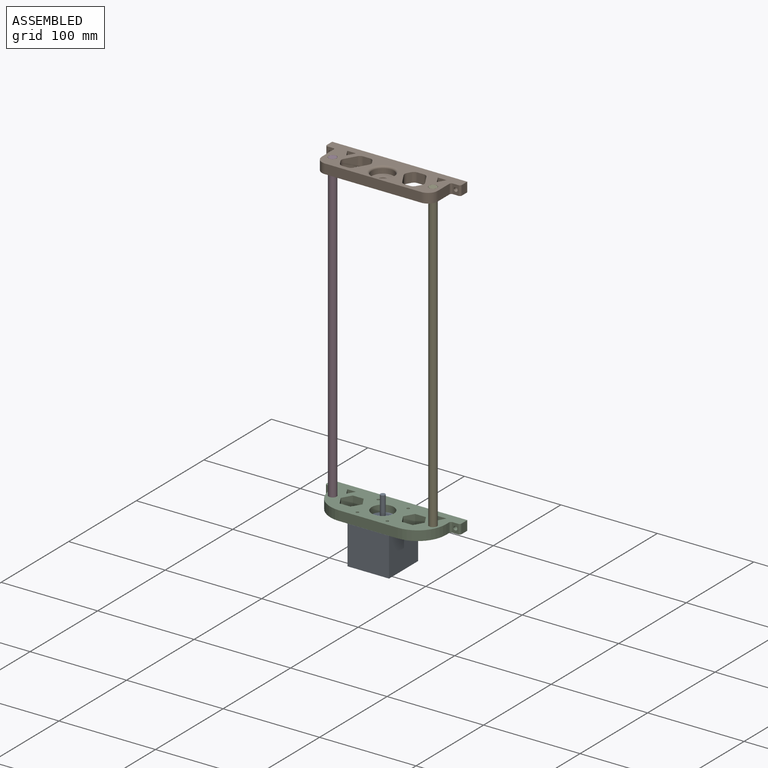
[diagram: assembled view]
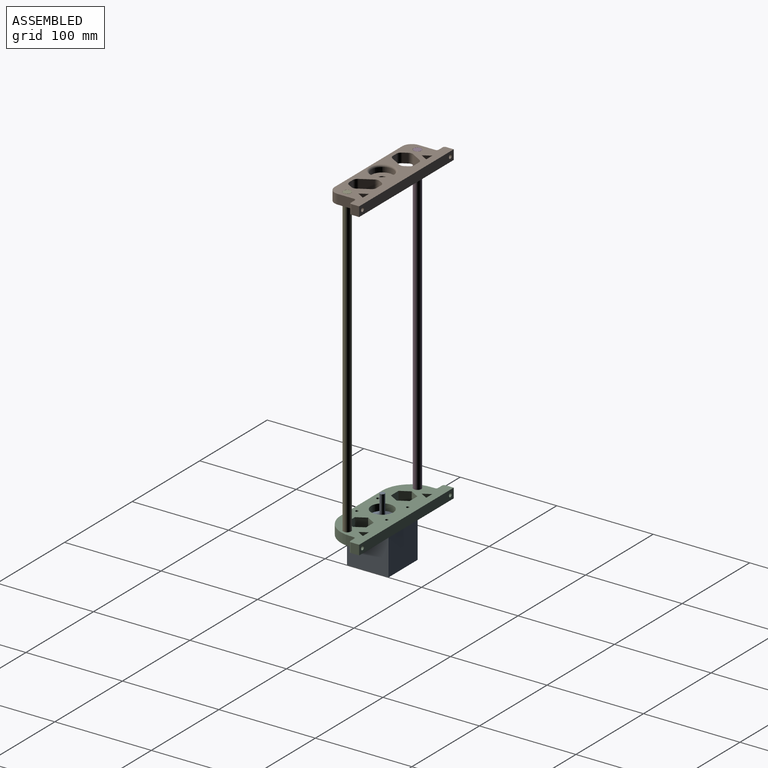
[diagram: assembled view, second angle]
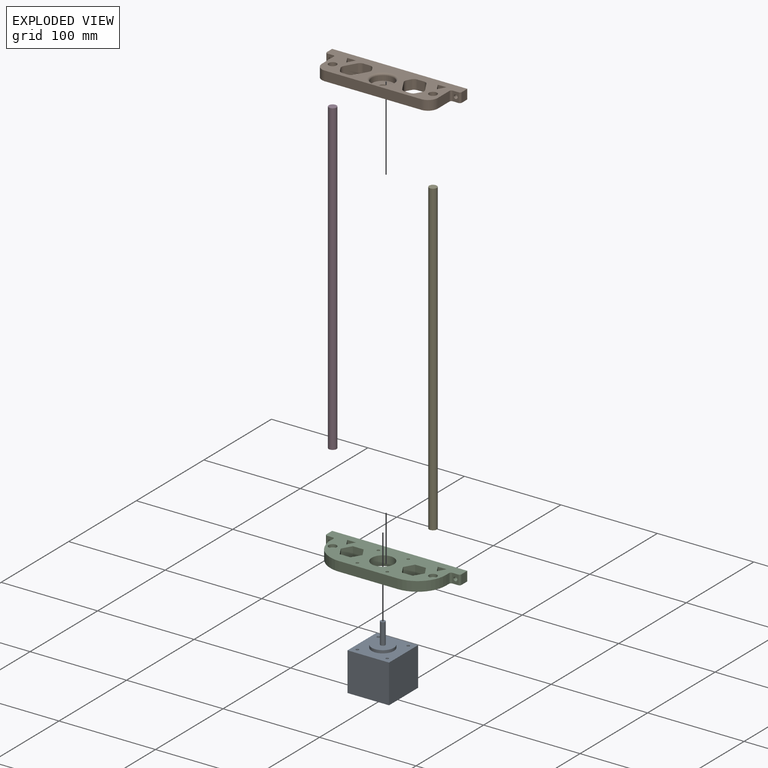
[diagram: exploded view]
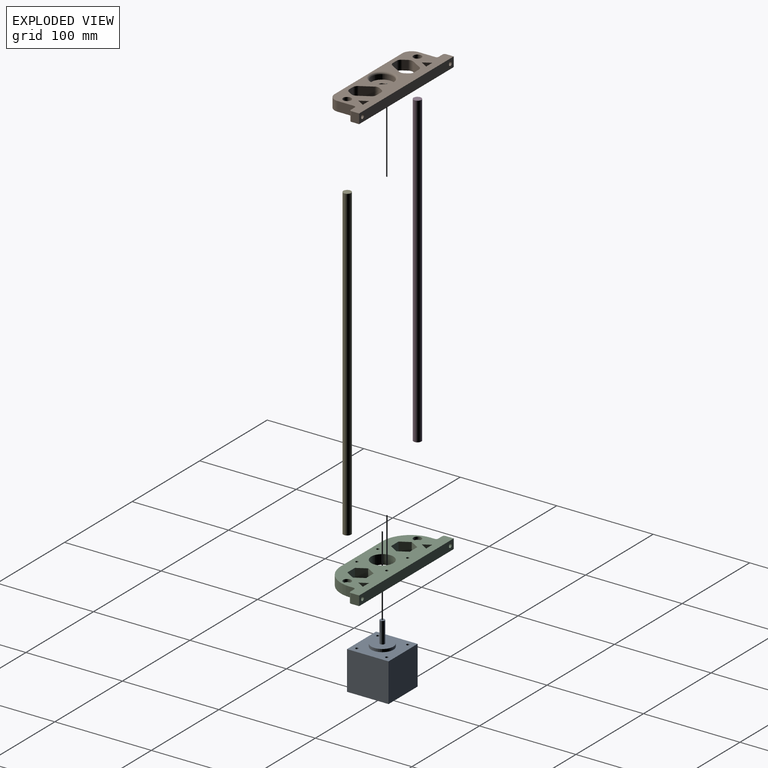
[diagram: exploded view, second angle]
ASSEMBLY  parts=5 mates=4
PART A: 14 faces, bbox 43x43x65 mm
  f0: cylinder r=11.5mm len=23mm, axis (0,0,-1), area 216.8mm2, adj f1,f13
  f1: plane 23x23mm, normal (0,0,1), area 395.8mm2, adj f0,f2
  f2: cylinder r=2.5mm len=22mm, axis (0,0,-1), area 345.6mm2, adj f1,f3
  f3: plane 5x5mm, normal (0,0,1), area 19.6mm2, adj f2
  f4: plane 43x40mm, normal (0,-1,0), area 1720mm2, adj f5,f11,f12,f13
  f5: plane 43x40mm, normal (1,0,0), area 1720mm2, adj f4,f6,f12,f13
  f6: plane 43x40mm, normal (0,1,0), area 1720mm2, adj f5,f11,f12,f13
  f7: cylinder r=1.5mm len=40mm, axis (0,0,1), area 377mm2, adj f12,f13
  f8: cylinder r=1.5mm len=40mm, axis (0,0,1), area 377mm2, adj f12,f13
  f9: cylinder r=1.5mm len=40mm, axis (0,0,1), area 377mm2, adj f12,f13
  f10: cylinder r=1.5mm len=40mm, axis (0,0,1), area 377mm2, adj f12,f13
  f11: plane 43x40mm, normal (-1,0,0), area 1720mm2, adj f4,f6,f12,f13
  f12: plane 43x43mm, normal (0,0,-1), area 1820.7mm2, adj f4,f5,f6,f7,f8,f9,f10,f11
  f13: plane 43x43mm, normal (0,0,1), area 1405.3mm2, adj f0,f4,f5,f6,f7,f8,f9,f10
PART B: 54 faces, bbox 140x39.6x10 mm
  f0: cylinder r=11.5mm len=23mm, axis (0,0,-1), area 361.3mm2, adj f40,f41
  f1: plane 140x39.4mm, normal (0,0,1), area 3185.7mm2, adj f3,f4,f5,f6,f7,f8,f9,f10
  f2: plane 140x39.4mm, normal (0,0,-1), area 3708mm2, adj f3,f4,f5,f6,f7,f8,f9,f10
  f3: plane 17.4x10mm, normal (1,0,0), area 174mm2, adj f1,f2,f10,f17
  f4: plane 17.4x10mm, normal (-1,0,0), area 174mm2, adj f1,f2,f9,f18
  f5: plane 140x10mm, normal (0,1,0), area 1374.9mm2, adj f1,f2,f12,f13,f15,f16
  f6: plane 100x10mm, normal (0,-1,0), area 1000mm2, adj f1,f2,f9,f10
  f7: cylinder r=4.15mm len=10mm, axis (0,0,1), area 260.8mm2, adj f1,f2
  f8: cylinder r=4.15mm len=10mm, axis (0,0,1), area 260.8mm2, adj f1,f2
  f9: cylinder r=10mm len=10mm, axis (0,0,1), area 157.1mm2, adj f1,f2,f4,f6
  f10: cylinder r=10mm len=10mm, axis (0,0,-1), area 157.1mm2, adj f1,f2,f3,f6
  f11: plane 10x6mm, normal (0,-1,0), area 47.4mm2, adj f1,f2,f13,f18,f20
  f12: plane 10x8mm, normal (-1,0,0), area 80mm2, adj f1,f2,f5,f20
  f13: cylinder r=2mm len=10mm, axis (0,-1,0), area 125.7mm2, adj f5,f11
  f14: plane 10x6mm, normal (0,-1,0), area 47.4mm2, adj f1,f2,f16,f17,f19
  f15: plane 10x8mm, normal (1,0,0), area 80mm2, adj f1,f2,f5,f19
  f16: cylinder r=2mm len=10mm, axis (0,-1,0), area 125.7mm2, adj f5,f14
  f17: cylinder r=2mm len=10mm, axis (0,0,1), area 31.4mm2, adj f1,f2,f3,f14
  f18: cylinder r=2mm len=10mm, axis (0,0,-1), area 31.4mm2, adj f1,f2,f4,f11
  f19: cylinder r=2mm len=10mm, axis (0,0,1), area 31.4mm2, adj f1,f2,f14,f15
  f20: cylinder r=2mm len=10mm, axis (0,0,1), area 31.4mm2, adj f1,f2,f11,f12
  f21: plane 10x5.49mm, normal (0,1,0), area 54.9mm2, adj f1,f2,f48,f53
  f22: plane 12.16x10mm, normal (-0.87,0.5,0), area 140.4mm2, adj f1,f2,f52,f53
  f23: plane 10x3.56mm, normal (-0.87,-0.5,0), area 41.1mm2, adj f1,f2,f51,f52
  f24: plane 10x6.88mm, normal (0,-1,0), area 68.8mm2, adj f1,f2,f50,f51
  f25: plane 10.96x10mm, normal (0.87,-0.5,0), area 126.5mm2, adj f1,f2,f49,f50
  f26: plane 10x4.76mm, normal (0.87,0.5,0), area 54.9mm2, adj f1,f2,f48,f49
  f27: plane 10x4.76mm, normal (-0.87,0.5,0), area 54.9mm2, adj f1,f2,f42,f47
  f28: plane 10.96x10mm, normal (-0.87,-0.5,0), area 126.5mm2, adj f1,f2,f42,f43
  f29: plane 10x6.88mm, normal (0,-1,0), area 68.8mm2, adj f1,f2,f43,f44
  f30: plane 10x3.56mm, normal (0.87,-0.5,0), area 41.1mm2, adj f1,f2,f44,f45
  f31: plane 12.16x10mm, normal (0.87,0.5,0), area 140.4mm2, adj f1,f2,f45,f46
  f32: plane 10x5.49mm, normal (0,1,0), area 54.9mm2, adj f1,f2,f46,f47
  f33: plane 10x7.81mm, normal (-0.87,0.5,0), area 90.2mm2, adj f1,f2,f34,f35
  f34: plane 10x9.02mm, normal (0,-1,0), area 90.2mm2, adj f1,f2,f33,f35
  f35: plane 10x7.81mm, normal (0.87,0.5,0), area 90.2mm2, adj f1,f2,f33,f34
  f36: plane 10x7.81mm, normal (-0.87,0.5,0), area 90.2mm2, adj f1,f2,f37,f38
  f37: plane 10x9.02mm, normal (0,-1,0), area 90.2mm2, adj f1,f2,f36,f38
  f38: plane 10x7.81mm, normal (0.87,0.5,0), area 90.2mm2, adj f1,f2,f36,f37
  f39: cylinder r=4mm len=8mm, axis (0,0,-1), area 75.4mm2, adj f2,f40
  f40: plane 23x23mm, normal (0,0,1), area 365.2mm2, adj f0,f39
  f41: torus R=13.5mm, axis (0,0,1), area 241.3mm2, adj f0,f1
  f42: cylinder r=5mm len=10mm, axis (0,0,-1), area 52.4mm2, adj f1,f2,f27,f28
  f43: cylinder r=5mm len=10mm, axis (0,0,-1), area 52.4mm2, adj f1,f2,f28,f29
  f44: cylinder r=5mm len=10mm, axis (0,0,-1), area 52.4mm2, adj f1,f2,f29,f30
  f45: cylinder r=5mm len=10mm, axis (0,0,-1), area 52.4mm2, adj f1,f2,f30,f31
  f46: cylinder r=5mm len=10mm, axis (0,0,-1), area 52.4mm2, adj f1,f2,f31,f32
  f47: cylinder r=5mm len=10mm, axis (0,0,-1), area 52.4mm2, adj f1,f2,f27,f32
  f48: cylinder r=5mm len=10mm, axis (0,0,-1), area 52.4mm2, adj f1,f2,f21,f26
  f49: cylinder r=5mm len=10mm, axis (0,0,-1), area 52.4mm2, adj f1,f2,f25,f26
  f50: cylinder r=5mm len=10mm, axis (0,0,-1), area 52.4mm2, adj f1,f2,f24,f25
  f51: cylinder r=5mm len=10mm, axis (0,0,-1), area 52.4mm2, adj f1,f2,f23,f24
  f52: cylinder r=5mm len=10mm, axis (0,0,-1), area 52.4mm2, adj f1,f2,f22,f23
  f53: cylinder r=5mm len=10mm, axis (0,0,-1), area 52.4mm2, adj f1,f2,f21,f22
PART C: 45 faces, bbox 140x46.4x10 mm
  f0: plane 140x46.4mm, normal (0,0,1), area 4127.3mm2, adj f2,f3,f4,f5,f6,f7,f8,f9
  f1: plane 140x46.4mm, normal (0,0,-1), area 4232.9mm2, adj f2,f3,f4,f5,f6,f7,f8,f9
  f2: plane 10x4.4mm, normal (1,0,0), area 44mm2, adj f0,f1,f16,f23
  f3: plane 10x4.4mm, normal (-1,0,0), area 44mm2, adj f0,f1,f15,f24
  f4: plane 140x10mm, normal (0,1,0), area 1374.9mm2, adj f0,f1,f18,f19,f21,f22
  f5: cylinder r=1.5mm len=10mm, axis (0,0,-1), area 94.2mm2, adj f0,f1
  f6: cylinder r=1.5mm len=10mm, axis (0,0,-1), area 94.2mm2, adj f0,f1
  f7: cylinder r=1.5mm len=10mm, axis (0,0,-1), area 94.2mm2, adj f0,f1
  f8: cylinder r=11.5mm len=23mm, axis (0,0,-1), area 722.6mm2, adj f0,f1
  f9: plane 61.09x10mm, normal (0,-1,0), area 610.9mm2, adj f0,f1,f15,f16
  f10: cylinder r=1.5mm len=10mm, axis (0,0,-1), area 94.2mm2, adj f0,f1
  f11: cylinder r=4.1mm len=8.2mm, axis (0,0,1), area 77.3mm2, adj f0,f12
  f12: plane 8.2x8.2mm, normal (0,0,1), area 52.8mm2, adj f11
  f13: cylinder r=4.1mm len=8.2mm, axis (0,0,1), area 77.3mm2, adj f0,f14
  f14: plane 8.2x8.2mm, normal (0,0,1), area 52.8mm2, adj f13
  f15: cylinder r=29.45mm len=29.45mm, axis (0,0,1), area 462.7mm2, adj f0,f1,f3,f9
  f16: cylinder r=29.45mm len=29.45mm, axis (0,0,-1), area 462.7mm2, adj f0,f1,f2,f9
  f17: plane 10x6mm, normal (0,-1,0), area 47.4mm2, adj f0,f1,f19,f24,f26
  f18: plane 10x8.55mm, normal (-1,0,0), area 85.5mm2, adj f0,f1,f4,f26
  f19: cylinder r=2mm len=10.55mm, axis (0,-1,0), area 132.5mm2, adj f4,f17
  f20: plane 10x6mm, normal (0,-1,0), area 47.4mm2, adj f0,f1,f22,f23,f25
  f21: plane 10x8.55mm, normal (1,0,0), area 85.5mm2, adj f0,f1,f4,f25
  f22: cylinder r=2mm len=10.55mm, axis (0,-1,0), area 132.5mm2, adj f4,f20
  f23: cylinder r=2mm len=10mm, axis (0,0,1), area 31.4mm2, adj f0,f1,f2,f20
  f24: cylinder r=2mm len=10mm, axis (0,0,-1), area 31.4mm2, adj f0,f1,f3,f17
  f25: cylinder r=2mm len=10mm, axis (0,0,1), area 31.4mm2, adj f0,f1,f20,f21
  f26: cylinder r=2mm len=10mm, axis (0,0,1), area 31.4mm2, adj f0,f1,f17,f18
  f27: plane 11.27x10mm, normal (0,1,0), area 112.7mm2, adj f0,f1,f28,f32
  f28: plane 10x9.76mm, normal (-0.87,0.5,0), area 112.7mm2, adj f0,f1,f27,f29
  f29: plane 10x9.76mm, normal (-0.87,-0.5,0), area 112.7mm2, adj f0,f1,f28,f30
  f30: plane 11.27x10mm, normal (0,-1,0), area 112.7mm2, adj f0,f1,f29,f31
  f31: plane 10x9.76mm, normal (0.87,-0.5,0), area 112.7mm2, adj f0,f1,f30,f32
  f32: plane 10x9.76mm, normal (0.87,0.5,0), area 112.7mm2, adj f0,f1,f27,f31
  f33: plane 10x9.76mm, normal (-0.87,0.5,0), area 112.7mm2, adj f0,f1,f34,f38
  f34: plane 10x9.76mm, normal (-0.87,-0.5,0), area 112.7mm2, adj f0,f1,f33,f35
  f35: plane 11.27x10mm, normal (0,-1,0), area 112.7mm2, adj f0,f1,f34,f36
  f36: plane 10x9.76mm, normal (0.87,-0.5,0), area 112.7mm2, adj f0,f1,f35,f37
  f37: plane 10x9.76mm, normal (0.87,0.5,0), area 112.7mm2, adj f0,f1,f36,f38
  f38: plane 11.27x10mm, normal (0,1,0), area 112.7mm2, adj f0,f1,f33,f37
  f39: plane 10x7.81mm, normal (-0.87,0.5,0), area 90.2mm2, adj f0,f1,f40,f41
  f40: plane 10x9.02mm, normal (0,-1,0), area 90.2mm2, adj f0,f1,f39,f41
  f41: plane 10x7.81mm, normal (0.87,0.5,0), area 90.2mm2, adj f0,f1,f39,f40
  f42: plane 10x7.81mm, normal (-0.87,0.5,0), area 90.2mm2, adj f0,f1,f43,f44
  f43: plane 10x9.02mm, normal (0,-1,0), area 90.2mm2, adj f0,f1,f42,f44
  f44: plane 10x7.81mm, normal (0.87,0.5,0), area 90.2mm2, adj f0,f1,f42,f43
PART D: 3 faces, bbox 8x8x320 mm
  f0: cylinder r=4mm len=320mm, axis (0,0,-1), area 8042.5mm2, adj f1,f2
  f1: plane 8x8mm, normal (0,0,1), area 50.3mm2, adj f0
  f2: plane 8x8mm, normal (0,0,-1), area 50.3mm2, adj f0
PART E: same geometry as D
PLACE A t=(-2.67,-2.48,6.1)mm fixed
PLACE B t=(-2.67,-2.48,323.1)mm
PLACE C t=(-2.67,-2.48,6.1)mm
PLACE D t=(-54.67,-2.48,13.1)mm
PLACE E t=(49.33,-2.48,13.1)mm
MATE fastened E.f0 <-> C.f11  axis (0,0,-1) through (49.33,-2.48,13.1)mm
MATE fastened A.f0 <-> C.f8  axis (0,0,1) through (-2.67,-2.48,6.1)mm
MATE fastened D.f0 <-> C.f13  axis (0,0,-1) through (-54.67,-2.48,13.1)mm
MATE fastened B.f8 <-> D.f0  axis (0,0,1) through (-54.67,-2.48,333.1)mm
